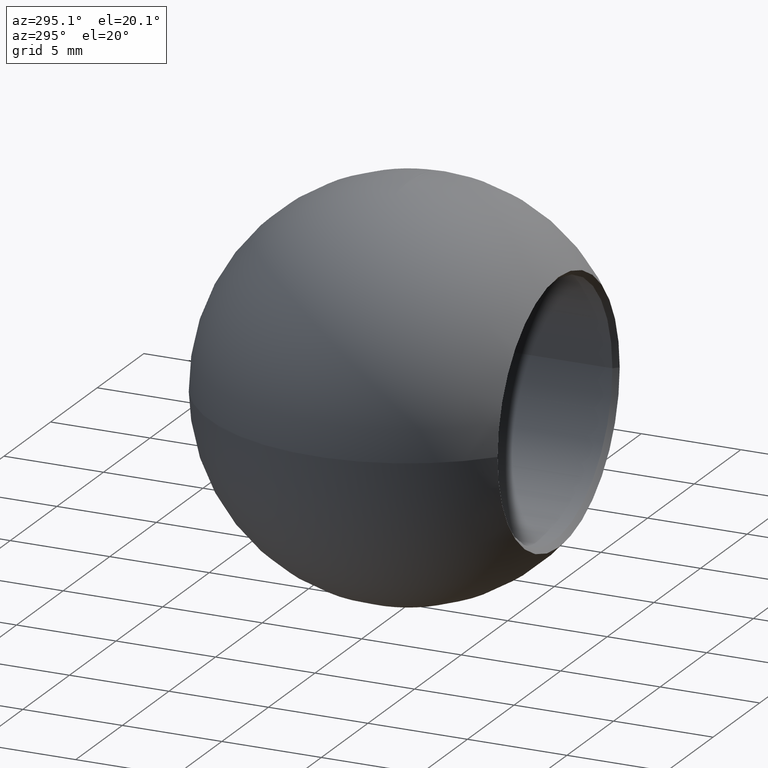
[diagram: clean part render]
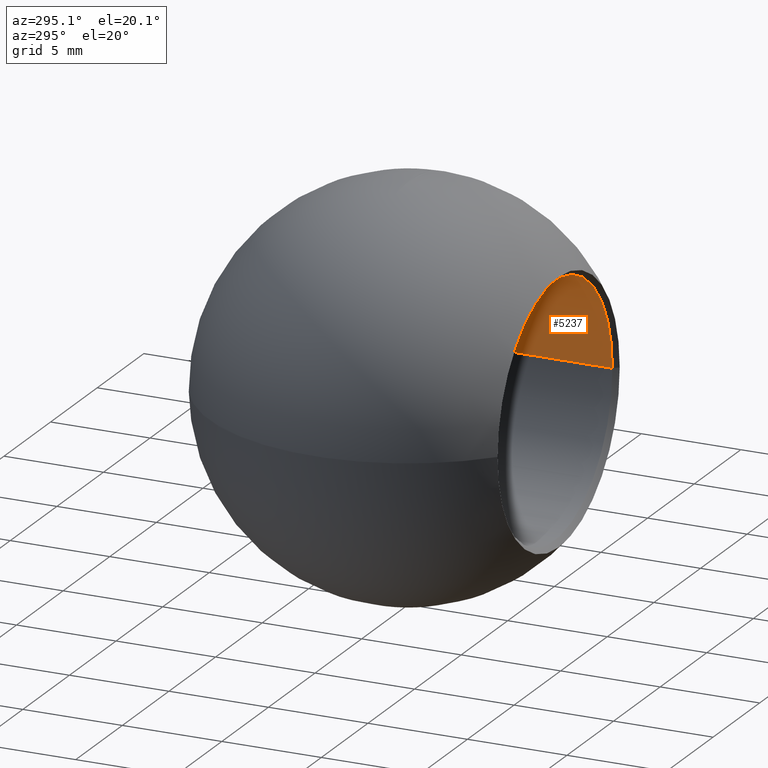
[diagram: same view with one face highlighted and labeled with its STEP entity id]
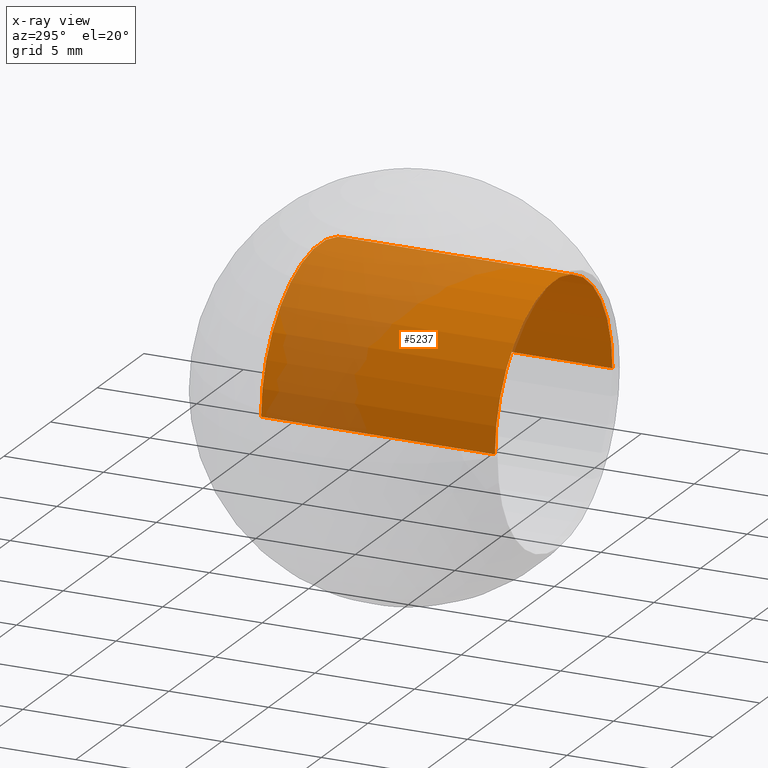
[diagram: x-ray of the same camera — body ghosted, the highlighted face saturated]
A machine part, auxiliary view. The second image highlights one B-rep face of the part: STEP entity #5237.
The next image is the same camera in x-ray: the body ghosted, the highlighted face saturated — about 41% of this face is hidden behind the body in this view.
In plain terms, the highlighted cylindrical surface (partial cylindrical patch) has radius 6.3 mm, axis along (-0, -1, -0).
Its self-contained STEP definition (entity closure, byte-faithful):
#338 = DIRECTION ( 'NONE',  ( 1.000000000000000000, 0.0000000000000000000, 0.0000000000000000000 ) ) ;
#444 = DIRECTION ( 'NONE',  ( -1.631843486866781500E-018, -1.000000000000000000, -0.0000000000000000000 ) ) ;
#527 = CARTESIAN_POINT ( 'NONE',  ( -2.889777570755572000E-018, 8.229133128260919200, 0.0000000000000000000 ) ) ;
#742 = ORIENTED_EDGE ( 'NONE', *, *, #6378, .T. ) ;
#1031 = EDGE_CURVE ( 'NONE', #7501, #6129, #10883, .T. ) ;
#1876 = DIRECTION ( 'NONE',  ( 1.000000000000000000, 0.0000000000000000000, 0.0000000000000000000 ) ) ;
#2503 = CARTESIAN_POINT ( 'NONE',  ( -6.300000000000000700, 8.229133128260919200, 7.715274834628326400E-016 ) ) ;
#2707 = DIRECTION ( 'NONE',  ( -1.631843486866781500E-018, -1.000000000000000000, -0.0000000000000000000 ) ) ;
#2783 = FACE_OUTER_BOUND ( 'NONE', #12216, .T. ) ;
#2986 = EDGE_CURVE ( 'NONE', #7555, #6129, #10856, .T. ) ;
#3179 = ORIENTED_EDGE ( 'NONE', *, *, #7201, .F. ) ;
#3991 = AXIS2_PLACEMENT_3D ( 'NONE', #527, #10992, #7872 ) ;
#5236 = CIRCLE ( 'NONE', #6033, 6.299999999999999800 ) ;
#5237 = ADVANCED_FACE ( 'NONE', ( #2783 ), #10167, .F. ) ;
#5479 = ORIENTED_EDGE ( 'NONE', *, *, #1031, .T. ) ;
#6033 = AXIS2_PLACEMENT_3D ( 'NONE', #9730, #8507, #338 ) ;
#6129 = VERTEX_POINT ( 'NONE', #9499 ) ;
#6378 = EDGE_CURVE ( 'NONE', #12472, #7501, #10322, .T. ) ;
#6433 = CARTESIAN_POINT ( 'NONE',  ( -6.299999999999999800, 4.443711228387312100, 7.715274834628325400E-016 ) ) ;
#7004 = AXIS2_PLACEMENT_3D ( 'NONE', #13164, #13250, #1876 ) ;
#7201 = EDGE_CURVE ( 'NONE', #12472, #7555, #5236, .T. ) ;
#7258 = VECTOR ( 'NONE', #444, 1000.000000000000000 ) ;
#7501 = VERTEX_POINT ( 'NONE', #9025 ) ;
#7555 = VERTEX_POINT ( 'NONE', #6433 ) ;
#7872 = DIRECTION ( 'NONE',  ( 1.000000000000000000, 0.0000000000000000000, 0.0000000000000000000 ) ) ;
#8507 = DIRECTION ( 'NONE',  ( -1.631843486866781500E-018, -1.000000000000000000, -0.0000000000000000000 ) ) ;
#9025 = CARTESIAN_POINT ( 'NONE',  ( 6.300000000000001600, -7.306288771612680800, 0.0000000000000000000 ) ) ;
#9057 = CARTESIAN_POINT ( 'NONE',  ( 6.300000000000000700, 8.229133128260919200, 0.0000000000000000000 ) ) ;
#9499 = CARTESIAN_POINT ( 'NONE',  ( -6.300000000000001600, -7.306288771612680800, 7.868355684521747300E-016 ) ) ;
#9730 = CARTESIAN_POINT ( 'NONE',  ( -9.066993643107195600E-018, 4.443711228387312100, 0.0000000000000000000 ) ) ;
#10142 = ORIENTED_EDGE ( 'NONE', *, *, #2986, .F. ) ;
#10167 = CYLINDRICAL_SURFACE ( 'NONE', #3991, 6.300000000000000700 ) ;
#10322 = LINE ( 'NONE', #9057, #10816 ) ;
#10816 = VECTOR ( 'NONE', #2707, 1000.000000000000000 ) ;
#10856 = LINE ( 'NONE', #2503, #7258 ) ;
#10883 = CIRCLE ( 'NONE', #7004, 6.300000000000001600 ) ;
#10992 = DIRECTION ( 'NONE',  ( -1.631843486866781500E-018, -1.000000000000000000, -0.0000000000000000000 ) ) ;
#12022 = CARTESIAN_POINT ( 'NONE',  ( 6.299999999999999800, 4.443711228387312100, 0.0000000000000000000 ) ) ;
#12216 = EDGE_LOOP ( 'NONE', ( #10142, #3179, #742, #5479 ) ) ;
#12472 = VERTEX_POINT ( 'NONE', #12022 ) ;
#13164 = CARTESIAN_POINT ( 'NONE',  ( -2.824115461379186800E-017, -7.306288771612680800, 0.0000000000000000000 ) ) ;
#13250 = DIRECTION ( 'NONE',  ( -1.631843486866781500E-018, -1.000000000000000000, -0.0000000000000000000 ) ) ;